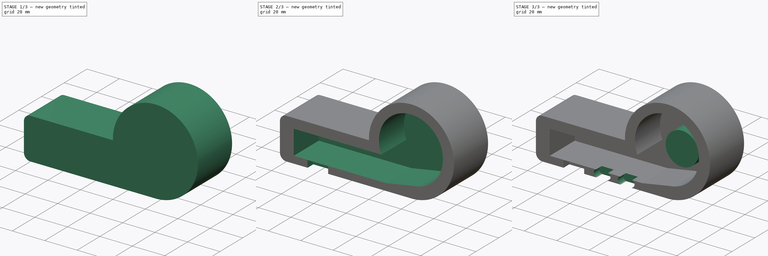
[diagram: build sequence overview — one tinted view per stage of 3, left to right]
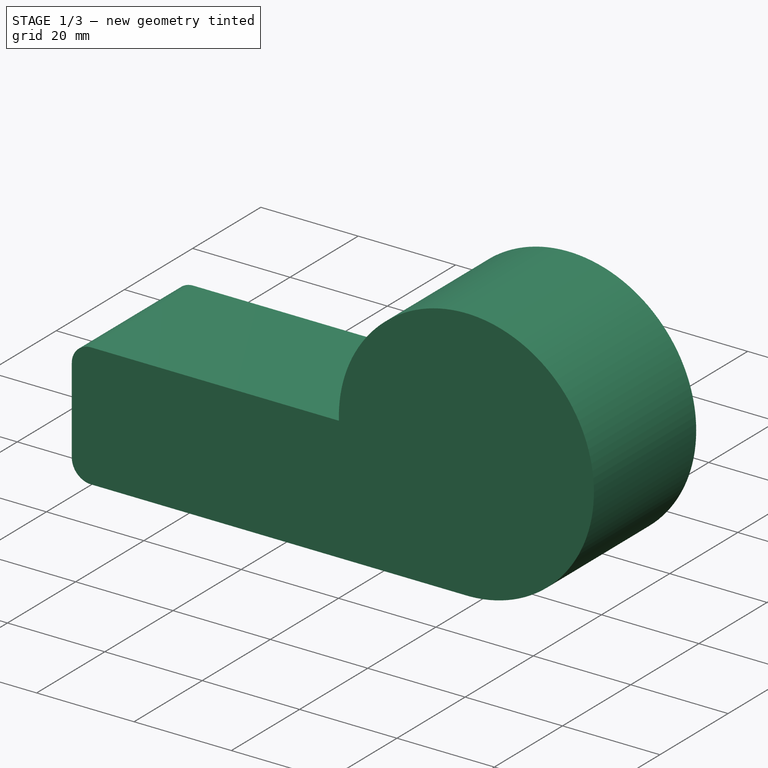
[diagram: stage 1 of 3 — iso view after this stage's code; geometry added in this stage tinted green]
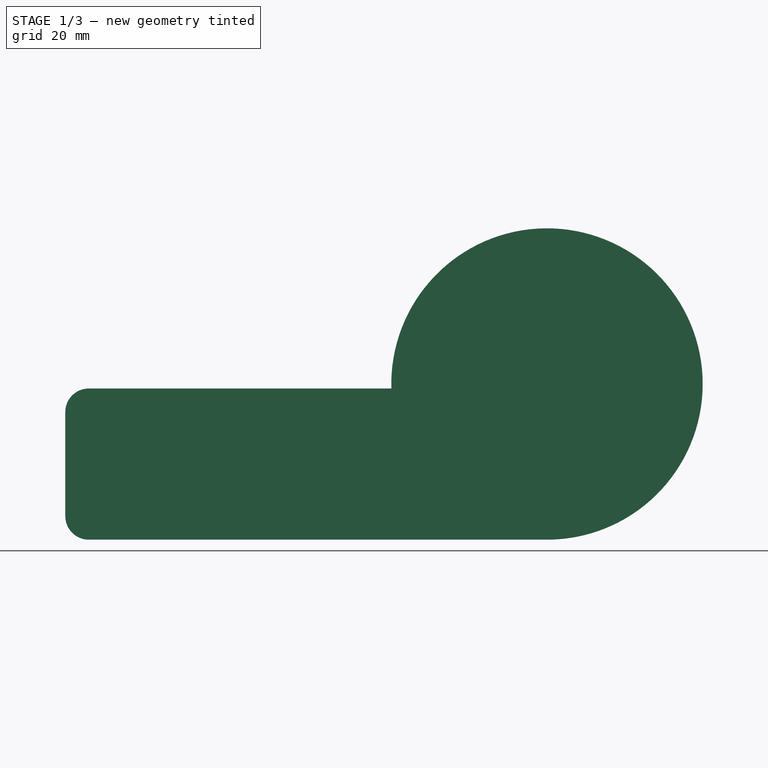
[diagram: stage 1 of 3 — front view after this stage's code; geometry added in this stage tinted green]
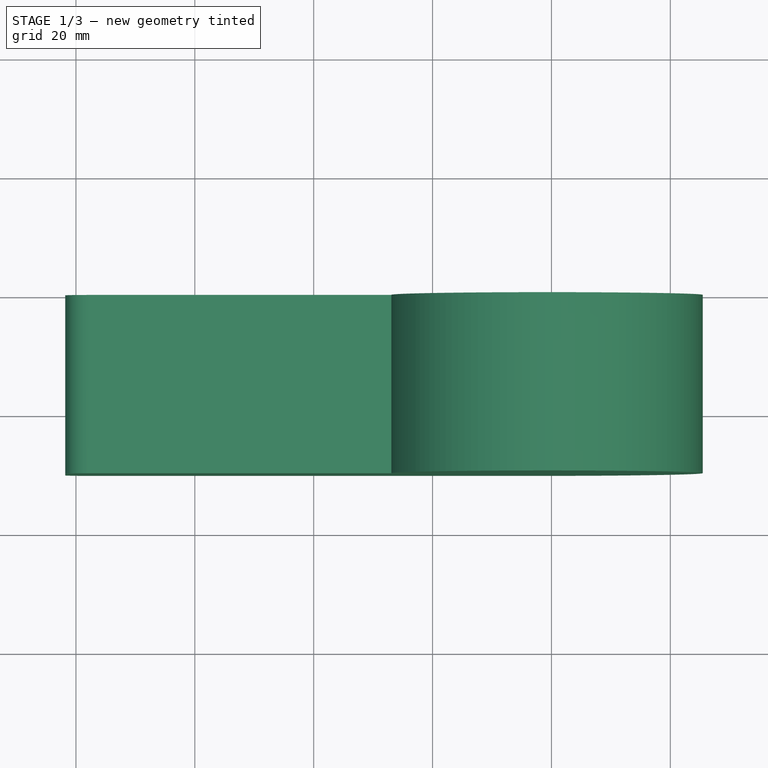
[diagram: stage 1 of 3 — top view after this stage's code; geometry added in this stage tinted green]
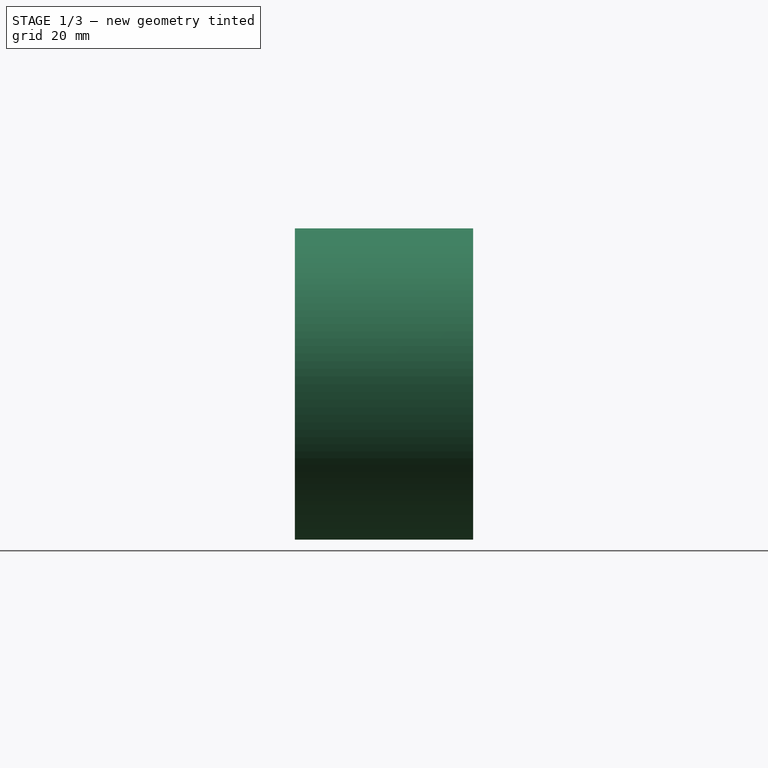
[diagram: stage 1 of 3 — right view after this stage's code; geometry added in this stage tinted green]
FCSTD DOCUMENT  (FreeCAD 0.21R33771 (Git))
Label: svistok
License: All rights reserved
LicenseURL: https://en.wikipedia.org/wiki/All_rights_reserved
objects: Sketcher::SketchObject×7, PartDesign::Pocket×4, PartDesign::Pad×2, PartDesign::Body×1
note: 20 computed .brp shape members not serialized (recipe doc carries the construction recipe); baked Part::Feature solids carry a one-line shape summary decoded from their .brp

FEATURE [Sketcher::SketchObject] Sketch
  FullyConstrained = false
  MapMode = 5
  Placement = pos=(0,0,0) rot=(1,0,0;1.5708rad)
  Support = -> [XZ_Plane]
  sketch-geometry (6):
    g0: LineSegment StartX=73.0713 StartY=44.6382 StartZ=0 EndX=22.1696 EndY=44.6382 EndZ=0
    g1: LineSegment StartX=18.2145 StartY=40.6831 StartZ=0 EndX=18.2145 EndY=23.1554 EndZ=0
    g2: LineSegment StartX=22.1657 StartY=19.2042 StartZ=0 EndX=98.8297 EndY=19.2042 EndZ=0
    g3: ArcOfCircle CenterX=99.2549 CenterY=45.3953 CenterZ=0 NormalX=0 NormalY=0 NormalZ=1 AngleXU=0 Radius=26.1946 StartAngle=4.69615 EndAngle=9.45368
    g4: ArcOfCircle CenterX=22.1696 CenterY=40.6831 CenterZ=0 NormalX=0 NormalY=0 NormalZ=1 AngleXU=0 Radius=3.95511 StartAngle=1.5708 EndAngle=3.14159
    g5: ArcOfCircle CenterX=22.1657 CenterY=23.1554 CenterZ=0 NormalX=0 NormalY=0 NormalZ=1 AngleXU=0 Radius=3.95115 StartAngle=3.14159 EndAngle=4.71239
  constraints (9):
    c: Horizontal(g0)
    c: Horizontal(g2)
    c: Vertical(g1)
    c: Coincident(g3,g0)
    c: Coincident(g3,g2)
    c: Tangent(g0,g4) = -1.5708
    c: Tangent(g1,g4) = -1.5708
    c: Tangent(g1,g5) = -1.5708
    c: Tangent(g2,g5) = -1.5708
FEATURE [PartDesign::Pad] Pad
  Direction = (0,-1,2e-16)
  Length = 30
  Length2 = 10
  Placement = pos=(0,0,0) rot=(1,0,0;1.5708rad)
  Profile = -> Sketch
  ReferenceAxis = -> Sketch [N_Axis]
  Type = 0
FEATURE [Sketcher::SketchObject] Sketch001
  FullyConstrained = true
  MapMode = 5
  Placement = pos=(0,0,0) rot=(-1,0,0;1.5708rad)
  Support = -> [Pad]
FEATURE [Sketcher::SketchObject] Sketch002
  FullyConstrained = false
  MapMode = 5
  Placement = pos=(18.2145,0,0) rot=(0.707107,0,-0.707107;3.14159rad)
  Support = -> [Pad]
  sketch-geometry (4):
    g0: LineSegment StartX=-37.8641 StartY=26.3178 StartZ=0 EndX=-25.6873 EndY=26.3178 EndZ=0
    g1: LineSegment StartX=-25.6873 StartY=26.3178 StartZ=0 EndX=-25.6873 EndY=4.02236 EndZ=0
    g2: LineSegment StartX=-25.6873 StartY=4.02236 StartZ=0 EndX=-37.8641 EndY=4.02236 EndZ=0
    g3: LineSegment StartX=-37.8641 StartY=4.02236 StartZ=0 EndX=-37.8641 EndY=26.3178 EndZ=0
  constraints (8):
    c: Coincident(g0,g1)
    c: Coincident(g1,g2)
    c: Coincident(g2,g3)
    c: Coincident(g3,g0)
    c: Horizontal(g0)
    c: Horizontal(g2)
    c: Vertical(g1)
    c: Vertical(g3)
FEATURE [PartDesign::Pocket] Pocket
  BaseFeature = -> Pad
  Direction = (1,0,2e-16)
  Length = 5
  Length2 = 5
  Placement = pos=(0,0,0) rot=(1,0,0;1.5708rad)
  Profile = -> Sketch002
  ReferenceAxis = -> Sketch002 [N_Axis]
  Type = 0
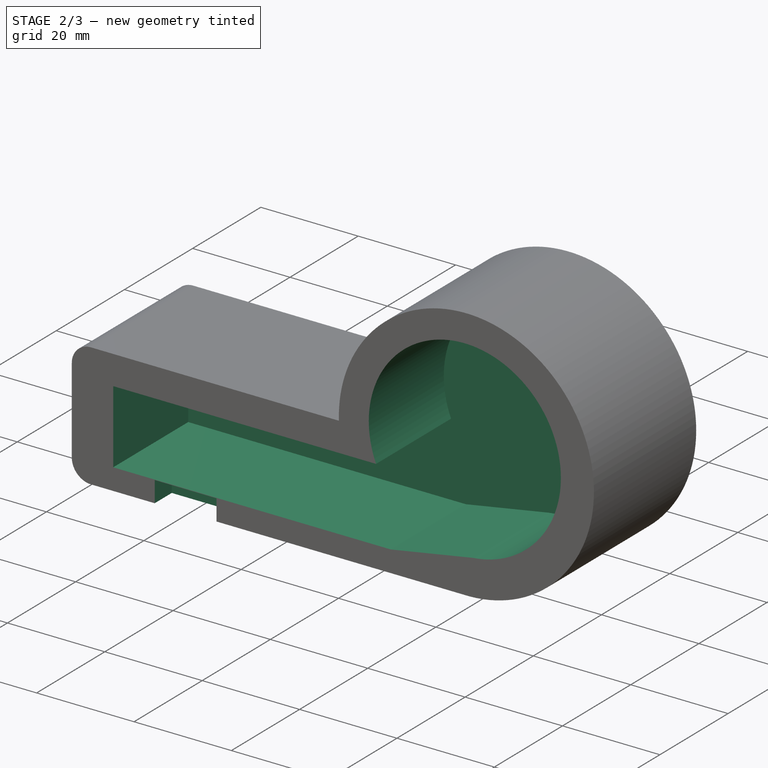
[diagram: stage 2 of 3 — iso view after this stage's code; geometry added in this stage tinted green]
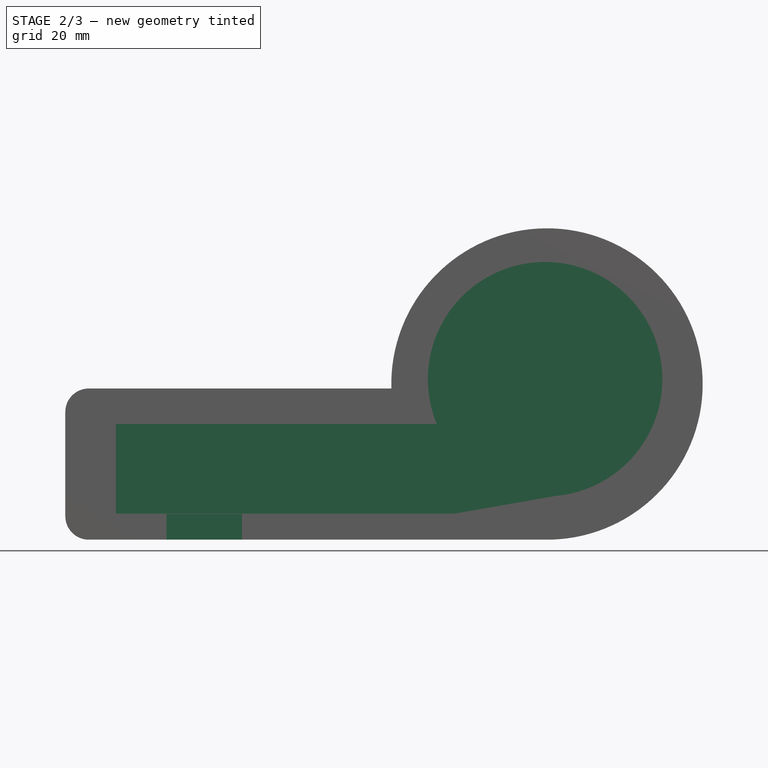
[diagram: stage 2 of 3 — front view after this stage's code; geometry added in this stage tinted green]
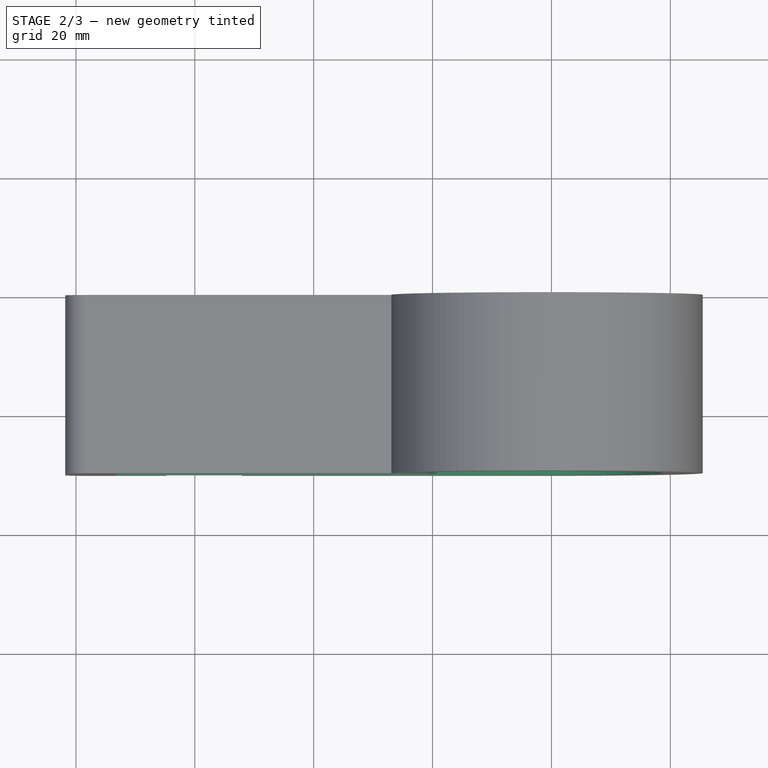
[diagram: stage 2 of 3 — top view after this stage's code; geometry added in this stage tinted green]
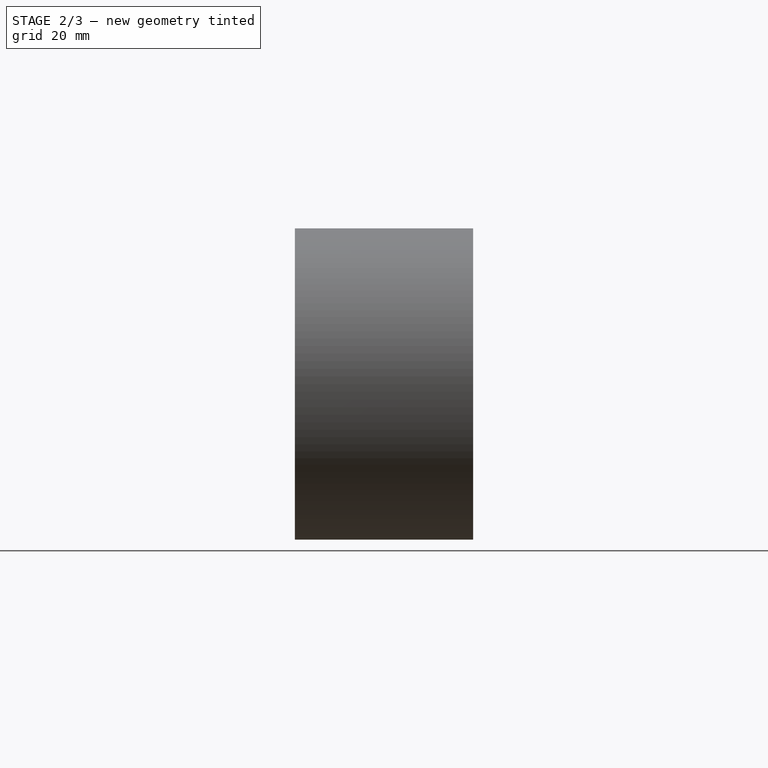
[diagram: stage 2 of 3 — right view after this stage's code; geometry added in this stage tinted green]
FEATURE [Sketcher::SketchObject] Sketch003
  FullyConstrained = false
  MapMode = 5
  Placement = pos=(0,-30,6.7e-15) rot=(1,0,0;1.5708rad)
  Support = -> [Pocket]
  sketch-geometry (5):
    g0: LineSegment StartX=26.716 StartY=38.666 StartZ=0 EndX=80.7088 EndY=38.666 EndZ=0
    g1: LineSegment StartX=83.7402 StartY=23.593 StartZ=0 EndX=26.716 EndY=23.593 EndZ=0
    g2: LineSegment StartX=26.716 StartY=23.593 StartZ=0 EndX=26.716 EndY=38.666 EndZ=0
    g3: ArcOfCircle CenterX=98.9355 CenterY=46.2055 CenterZ=0 NormalX=0 NormalY=0 NormalZ=1 AngleXU=0 Radius=19.7245 StartAngle=4.80098 EndAngle=9.817
    g4: LineSegment StartX=83.7402 StartY=23.593 StartZ=0 EndX=100.681 EndY=26.5583 EndZ=0
  constraints (9):
    c: Coincident(g1,g2)
    c: Coincident(g2,g0)
    c: Horizontal(g0)
    c: Horizontal(g1)
    c: Vertical(g2)
    c: PointOnObject(g4,g3)
    c: Coincident(g3,g0)
    c: PointOnObject(g3,g4)
    c: Coincident(g4,g1)
FEATURE [PartDesign::Pocket] Pocket001
  BaseFeature = -> Pocket
  Direction = (0,1,-2e-16)
  Length = 22
  Length2 = 5
  Placement = pos=(0,0,0) rot=(1,0,0;1.5708rad)
  Profile = -> Sketch003
  ReferenceAxis = -> Sketch003 [N_Axis]
  Type = 0
FEATURE [Sketcher::SketchObject] Sketch004
  FullyConstrained = false
  MapMode = 5
  Placement = pos=(0,-30,6.7e-15) rot=(1,0,0;1.5708rad)
  Support = -> [Pocket001]
  sketch-geometry (4):
    g0: LineSegment StartX=35.2385 StartY=23.5123 StartZ=0 EndX=47.9376 EndY=23.5123 EndZ=0
    g1: LineSegment StartX=47.9376 StartY=23.5123 StartZ=0 EndX=47.9376 EndY=19.1079 EndZ=0
    g2: LineSegment StartX=47.9376 StartY=19.1079 StartZ=0 EndX=35.2385 EndY=19.1079 EndZ=0
    g3: LineSegment StartX=35.2385 StartY=19.1079 StartZ=0 EndX=35.2385 EndY=23.5123 EndZ=0
  constraints (8):
    c: Coincident(g0,g1)
    c: Coincident(g1,g2)
    c: Coincident(g2,g3)
    c: Coincident(g3,g0)
    c: Horizontal(g0)
    c: Horizontal(g2)
    c: Vertical(g1)
    c: Vertical(g3)
FEATURE [PartDesign::Pocket] Pocket002
  BaseFeature = -> Pocket001
  Direction = (0,1,-2e-16)
  Length = 5
  Length2 = 5
  Placement = pos=(0,0,0) rot=(1,0,0;1.5708rad)
  Profile = -> Sketch004
  ReferenceAxis = -> Sketch004 [N_Axis]
  Type = 0
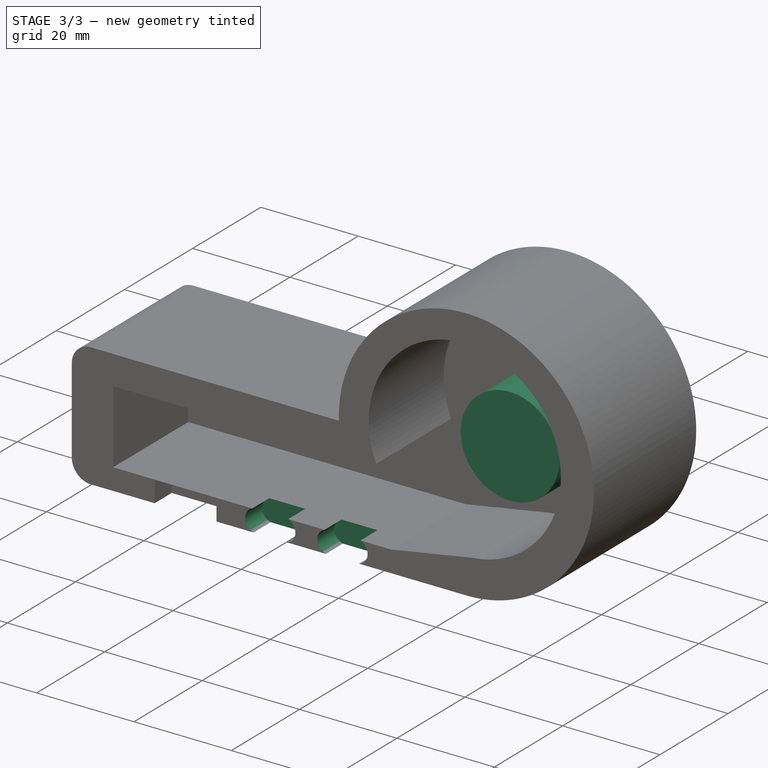
[diagram: stage 3 of 3 — iso view after this stage's code; geometry added in this stage tinted green]
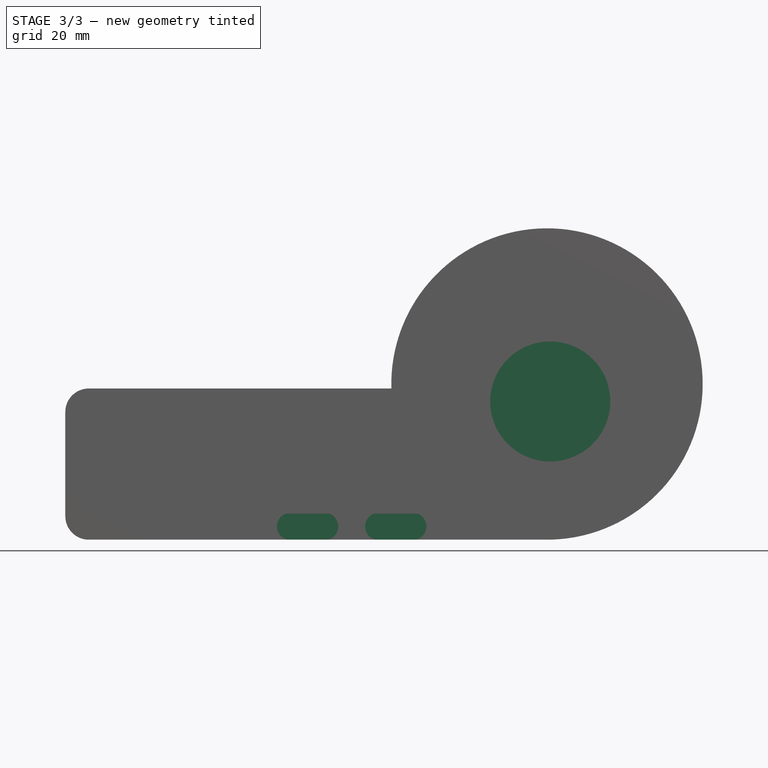
[diagram: stage 3 of 3 — front view after this stage's code; geometry added in this stage tinted green]
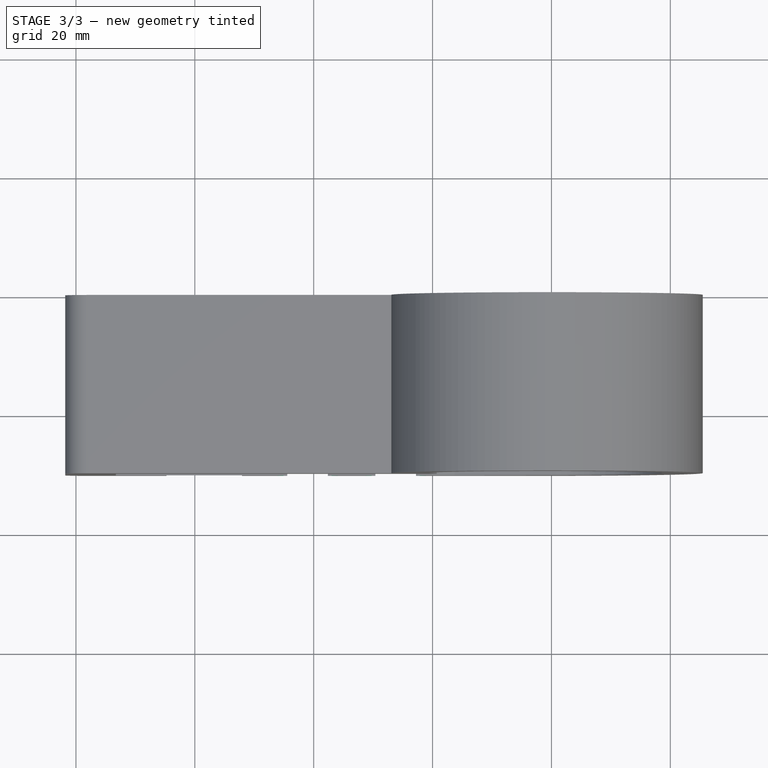
[diagram: stage 3 of 3 — top view after this stage's code; geometry added in this stage tinted green]
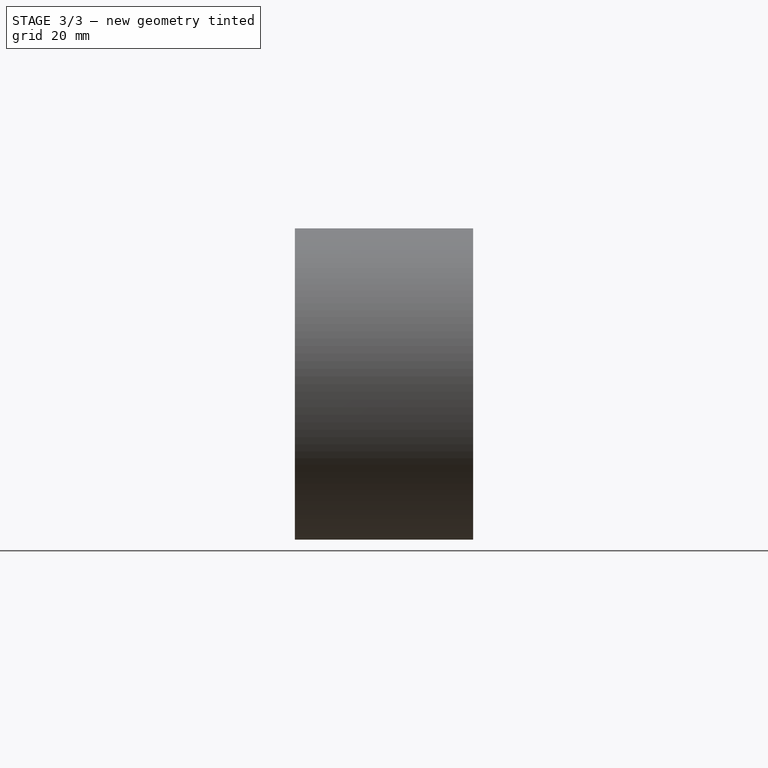
[diagram: stage 3 of 3 — right view after this stage's code; geometry added in this stage tinted green]
FEATURE [Sketcher::SketchObject] Sketch006
  FullyConstrained = false
  MapMode = 5
  Placement = pos=(0,-30,6.7e-15) rot=(1,0,0;1.5708rad)
  Support = -> [Pocket002]
  sketch-geometry (8):
    g0: ArcOfCircle CenterX=56.1194 CenterY=21.4413 CenterZ=0 NormalX=0 NormalY=0 NormalZ=1 AngleXU=0 Radius=2.30835 StartAngle=1.5708 EndAngle=4.71239
    g1: ArcOfCircle CenterX=61.822 CenterY=21.4413 CenterZ=0 NormalX=0 NormalY=0 NormalZ=1 AngleXU=0 Radius=2.30835 StartAngle=4.71239 EndAngle=7.85398
    g2: LineSegment StartX=56.1194 StartY=19.133 StartZ=0 EndX=61.822 EndY=19.133 EndZ=0
    g3: LineSegment StartX=61.822 StartY=23.7497 StartZ=0 EndX=56.1194 EndY=23.7497 EndZ=0
    g4: LineSegment StartX=76.6563 StartY=23.7497 StartZ=0 EndX=70.9538 EndY=23.7497 EndZ=0
    g5: ArcOfCircle CenterX=70.9538 CenterY=21.4413 CenterZ=0 NormalX=0 NormalY=0 NormalZ=1 AngleXU=0 Radius=2.30835 StartAngle=1.5708 EndAngle=4.71239
    g6: ArcOfCircle CenterX=76.6563 CenterY=21.4413 CenterZ=0 NormalX=0 NormalY=0 NormalZ=1 AngleXU=0 Radius=2.30835 StartAngle=4.71239 EndAngle=7.85398
    g7: LineSegment StartX=70.9538 StartY=19.133 StartZ=0 EndX=76.6563 EndY=19.133 EndZ=0
  constraints (12):
    c: Tangent(g0,g2) = -1.5708
    c: Tangent(g2,g1) = -1.5708
    c: Tangent(g1,g3) = -1.5708
    c: Tangent(g3,g0) = -1.5708
    c: Equal(g0,g1)
    c: Horizontal(g2)
    c: Tangent(g5,g7) = -1.5708
    c: Tangent(g7,g6) = -1.5708
    c: Tangent(g6,g4) = -1.5708
    c: Tangent(g4,g5) = -1.5708
    c: Equal(g5,g6)
    c: Horizontal(g7)
FEATURE [PartDesign::Pocket] Pocket003
  BaseFeature = -> Pocket002
  Direction = (0,1,-2e-16)
  Length = 5
  Length2 = 5
  Placement = pos=(0,0,0) rot=(1,0,0;1.5708rad)
  Profile = -> Sketch006
  ReferenceAxis = -> Sketch006 [N_Axis]
  Type = 0
FEATURE [Sketcher::SketchObject] Sketch007
  FullyConstrained = false
  MapMode = 5
  Placement = pos=(1e-16,-8,1.8e-15) rot=(1,0,0;1.5708rad)
  Support = -> [Pocket003]
  sketch-geometry (1):
    g0: Circle CenterX=99.8017 CenterY=42.4565 CenterZ=0 NormalX=0 NormalY=0 NormalZ=1 AngleXU=0 Radius=10.0984
FEATURE [PartDesign::Pad] Pad001
  BaseFeature = -> Pocket003
  Direction = (0,-1,2e-16)
  Length = 10
  Length2 = 10
  Placement = pos=(0,0,0) rot=(1,0,0;1.5708rad)
  Profile = -> Sketch007
  ReferenceAxis = -> Sketch007 [N_Axis]
  Type = 0
FEATURE [PartDesign::Body] Body
  Group = -> [Sketch,Pad,Sketch001,Sketch002,Pocket,Sketch003,Pocket001,Sketch004,Pocket002,Sketch006,Pocket003,Sketch007,Pad001]
  Origin = -> Origin
  Tip = -> Pad001
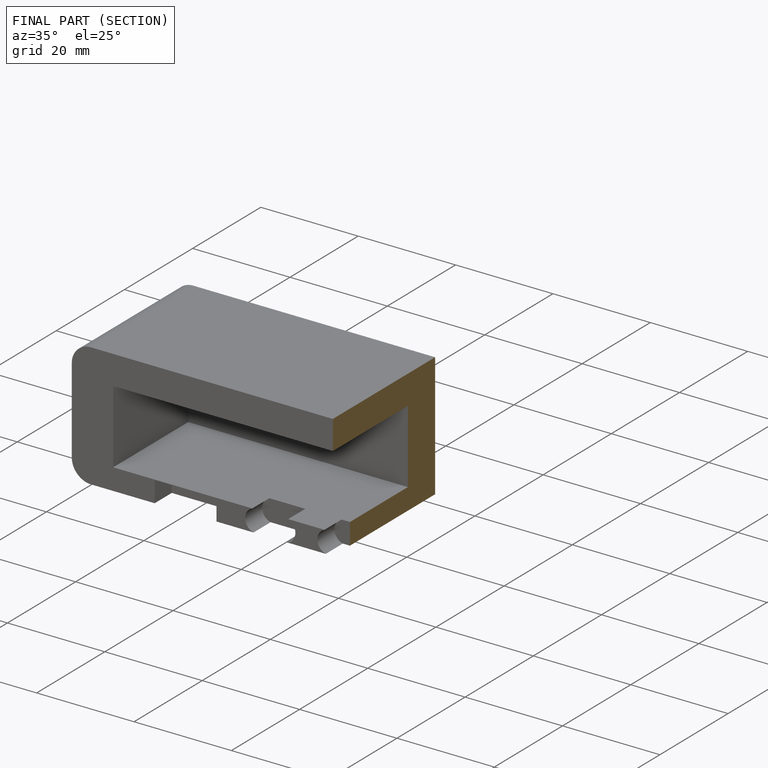
[diagram: finished part — half-section view (interior)]
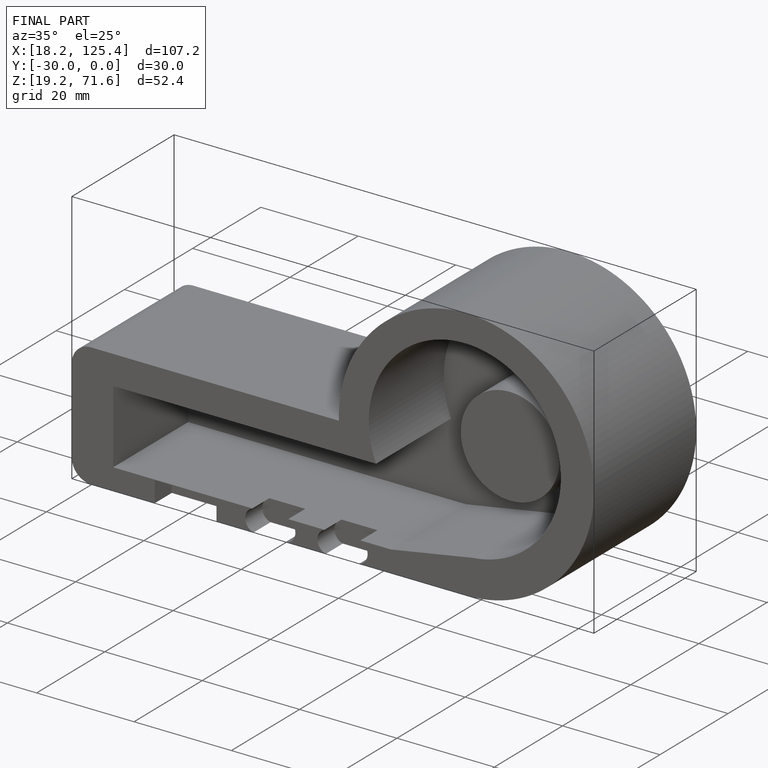
[diagram: finished part — iso view with bounding-box wireframe]
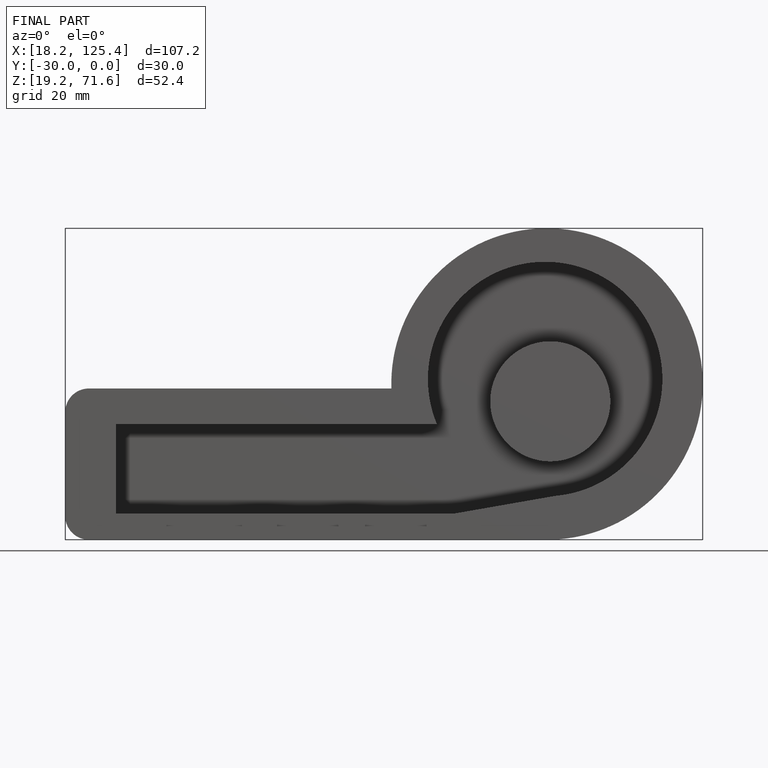
[diagram: finished part — front view with bounding-box wireframe]
